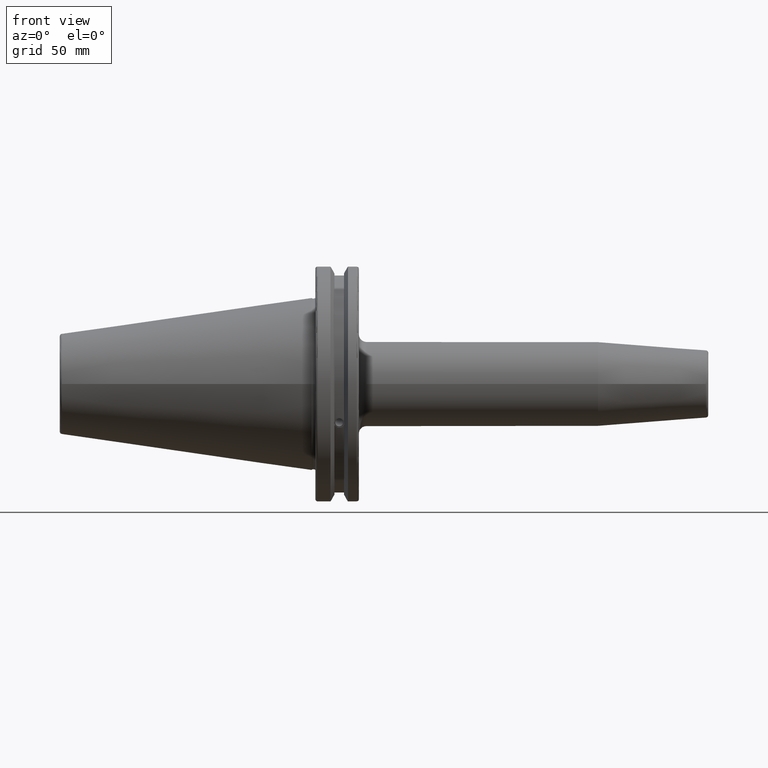
[diagram: clean part render]
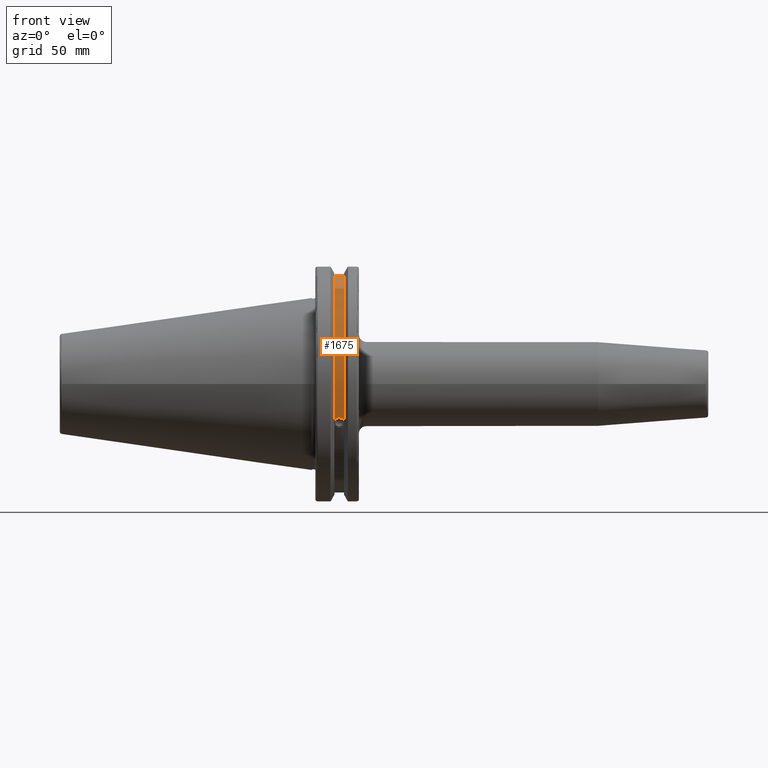
[diagram: same view with one face highlighted and labeled with its STEP entity id]
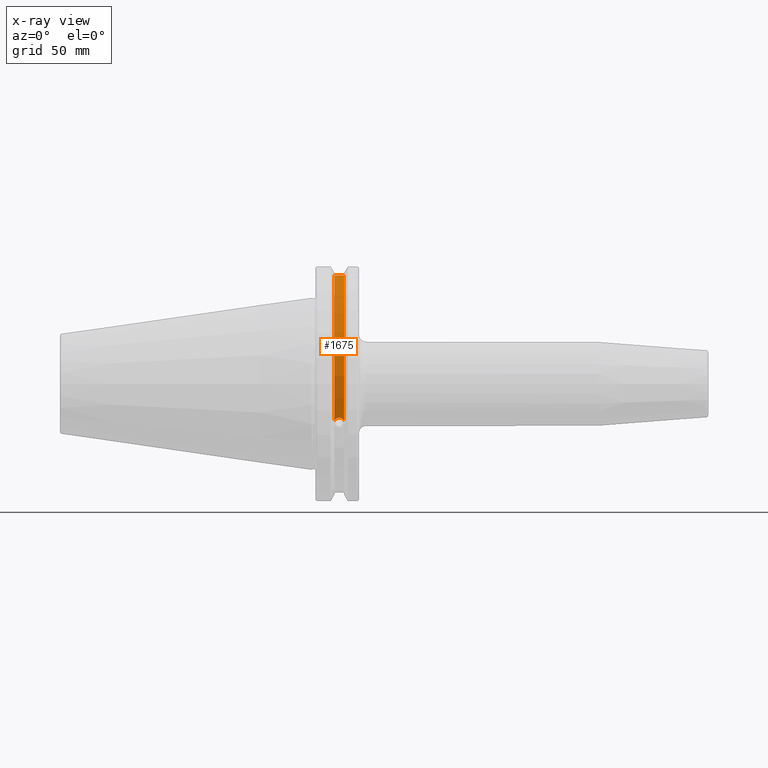
[diagram: x-ray of the same camera — body ghosted, the highlighted face saturated]
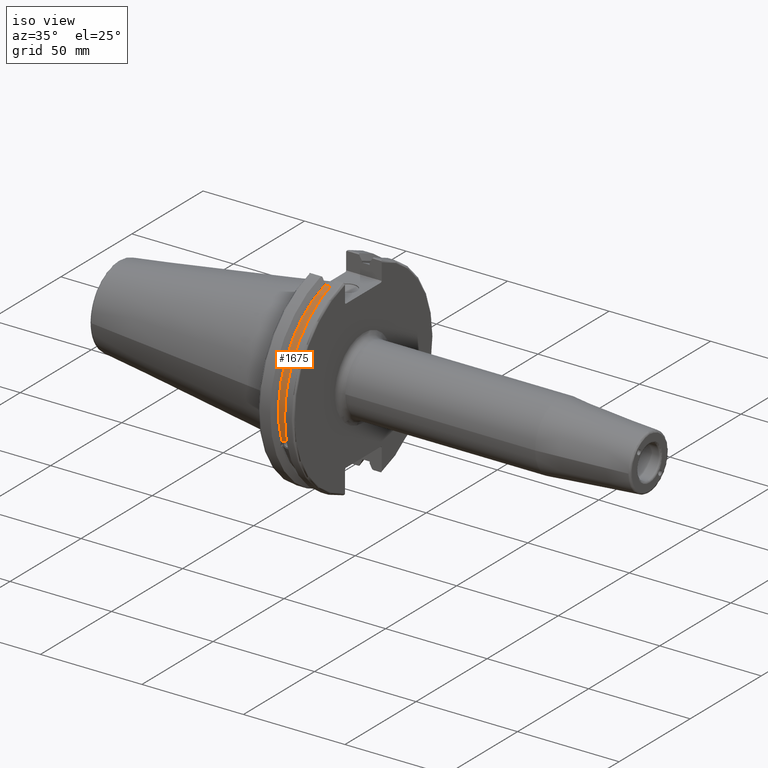
[diagram: same view with one face highlighted and labeled with its STEP entity id]
A machine part, front view. The second image highlights one B-rep face of the part: STEP entity #1675.
The next image is the same camera in x-ray: the body ghosted, the highlighted face saturated — about 0% of this face is hidden behind the body in this view.
A second angle (iso view) of the same face is appended — the face is thin or edge-on in the first view.
In plain terms, the highlighted cylindrical surface (partial cylindrical patch) has radius 45.6435 mm, axis along (1, 0, 0).
Its self-contained STEP definition (entity closure, byte-faithful):
#110=B_SPLINE_CURVE_WITH_KNOTS('',3,(#2656,#2657,#2658,#2659,#2660,#2661,
#2662,#2663,#2664,#2665,#2666,#2667,#2668,#2669),.UNSPECIFIED.,.F.,.F.,
(4,2,2,2,2,2,4),(0.40154831257669,0.47469709549563,0.553813286063442,0.632929476631253,
0.712045667199065,0.791161857766876,0.864310640685817),.UNSPECIFIED.);
#172=CYLINDRICAL_SURFACE('',#1878,45.6435);
#264=FACE_OUTER_BOUND('',#377,.T.);
#377=EDGE_LOOP('',(#1554,#1555,#1556,#1557));
#442=LINE('',#3118,#542);
#542=VECTOR('',#2166,10.);
#663=CIRCLE('',#1877,45.6435);
#664=CIRCLE('',#1879,45.6435);
#717=VERTEX_POINT('',#2653);
#718=VERTEX_POINT('',#2655);
#788=VERTEX_POINT('',#3115);
#789=VERTEX_POINT('',#3117);
#898=EDGE_CURVE('',#718,#717,#110,.T.);
#994=EDGE_CURVE('',#789,#788,#442,.T.);
#1072=EDGE_CURVE('',#788,#718,#663,.T.);
#1073=EDGE_CURVE('',#789,#717,#664,.T.);
#1554=ORIENTED_EDGE('',*,*,#898,.T.);
#1555=ORIENTED_EDGE('',*,*,#1073,.F.);
#1556=ORIENTED_EDGE('',*,*,#994,.T.);
#1557=ORIENTED_EDGE('',*,*,#1072,.T.);
#1675=ADVANCED_FACE('',(#264),#172,.T.);
#1877=AXIS2_PLACEMENT_3D('',#3326,#2335,#2336);
#1878=AXIS2_PLACEMENT_3D('',#3327,#2337,#2338);
#1879=AXIS2_PLACEMENT_3D('',#3328,#2339,#2340);
#2166=DIRECTION('',(-1.,0.,0.));
#2335=DIRECTION('center_axis',(1.,0.,0.));
#2336=DIRECTION('ref_axis',(0.,0.,-1.));
#2337=DIRECTION('center_axis',(1.,0.,0.));
#2338=DIRECTION('ref_axis',(0.,-0.888619069115281,0.458645996390125));
#2339=DIRECTION('center_axis',(1.,0.,0.));
#2340=DIRECTION('ref_axis',(0.,0.,-1.));
#2653=CARTESIAN_POINT('',(13.042,-43.1779814500336,-14.7983448449669));
#2655=CARTESIAN_POINT('',(9.21200000000001,-43.1779814500336,-14.7983448449669));
#2656=CARTESIAN_POINT('Ctrl Pts',(9.21199999999999,-43.1779814500335,-14.7983448449669));
#2657=CARTESIAN_POINT('Ctrl Pts',(9.31822177598176,-43.2545173750974,-14.5750315766731));
#2658=CARTESIAN_POINT('Ctrl Pts',(9.46970807557665,-43.3223492818373,-14.3712521044637));
#2659=CARTESIAN_POINT('Ctrl Pts',(9.82850503400179,-43.4340904392251,-14.0300988117073));
#2660=CARTESIAN_POINT('Ctrl Pts',(10.0646203280543,-43.4832903960863,-13.8760243976176));
#2661=CARTESIAN_POINT('Ctrl Pts',(10.5820059167872,-43.54802519266,-13.6715068146718));
#2662=CARTESIAN_POINT('Ctrl Pts',(10.863279364774,-43.5636826100883,-13.6211104428929));
#2663=CARTESIAN_POINT('Ctrl Pts',(11.390720635226,-43.5636826100883,-13.6211104428929));
#2664=CARTESIAN_POINT('Ctrl Pts',(11.6719940832128,-43.54802519266,-13.6715068146718));
#2665=CARTESIAN_POINT('Ctrl Pts',(12.1893796719457,-43.4832903960863,-13.8760243976176));
#2666=CARTESIAN_POINT('Ctrl Pts',(12.4254949659982,-43.4340904392251,-14.0300988117073));
#2667=CARTESIAN_POINT('Ctrl Pts',(12.7842919244233,-43.3223492818373,-14.3712521044637));
#2668=CARTESIAN_POINT('Ctrl Pts',(12.9357782240182,-43.2545173750974,-14.5750315766731));
#2669=CARTESIAN_POINT('Ctrl Pts',(13.042,-43.1779814500335,-14.7983448449669));
#3115=CARTESIAN_POINT('',(9.21200000000001,-12.95,43.7678716897452));
#3117=CARTESIAN_POINT('',(13.042,-12.95,43.7678716897452));
#3118=CARTESIAN_POINT('',(11.127,-12.95,43.7678716897452));
#3326=CARTESIAN_POINT('Origin',(9.21200000000001,0.,0.));
#3327=CARTESIAN_POINT('Origin',(11.127,0.,0.));
#3328=CARTESIAN_POINT('Origin',(13.042,0.,0.));